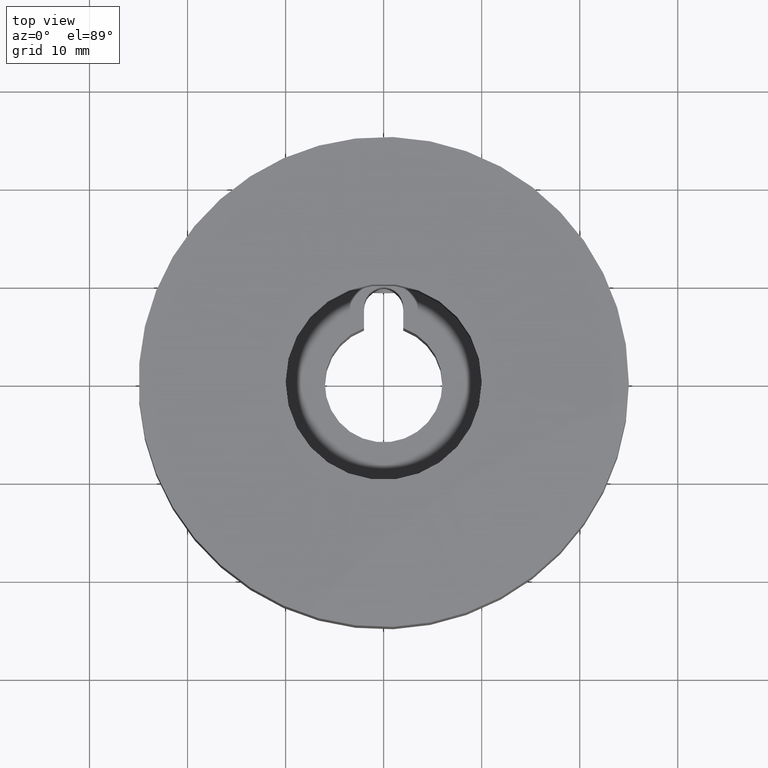
[diagram: clean part render]
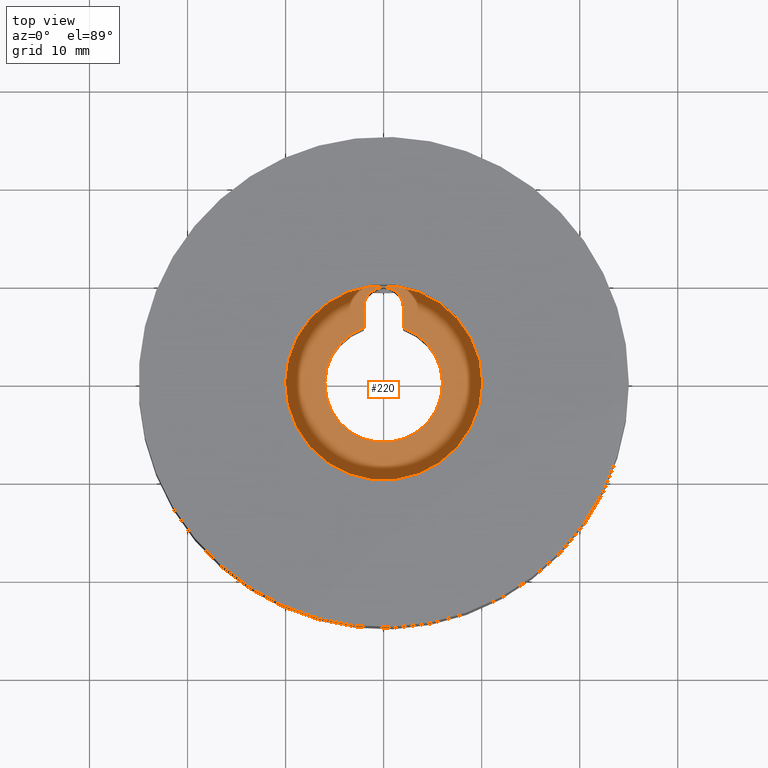
[diagram: same view with one face highlighted and labeled with its STEP entity id]
A machine part, top view. The second image highlights one B-rep face of the part: STEP entity #220.
In plain terms, the highlighted planar face has unit normal (0, 0, -1).
Its self-contained STEP definition (entity closure, byte-faithful):
#220 = ADVANCED_FACE( '', ( #257, #258 ), #259, .F. );
#257 = FACE_OUTER_BOUND( '', #329, .T. );
#258 = FACE_BOUND( '', #330, .T. );
#259 = PLANE( '', #331 );
#329 = EDGE_LOOP( '', ( #418 ) );
#330 = EDGE_LOOP( '', ( #419, #420, #421, #422 ) );
#331 = AXIS2_PLACEMENT_3D( '', #423, #424, #425 );
#418 = ORIENTED_EDGE( '', *, *, #575, .T. );
#419 = ORIENTED_EDGE( '', *, *, #576, .T. );
#420 = ORIENTED_EDGE( '', *, *, #577, .T. );
#421 = ORIENTED_EDGE( '', *, *, #573, .T. );
#422 = ORIENTED_EDGE( '', *, *, #571, .T. );
#423 = CARTESIAN_POINT( '', ( 0.000000000000000, 0.000000000000000, -19.0000000000000 ) );
#424 = DIRECTION( '', ( 0.000000000000000, 0.000000000000000, -1.00000000000000 ) );
#425 = DIRECTION( '', ( 1.00000000000000, 0.000000000000000, 0.000000000000000 ) );
#571 = EDGE_CURVE( '', #625, #623, #626, .T. );
#573 = EDGE_CURVE( '', #628, #625, #629, .F. );
#575 = EDGE_CURVE( '', #631, #631, #632, .T. );
#576 = EDGE_CURVE( '', #623, #633, #634, .F. );
#577 = EDGE_CURVE( '', #633, #628, #635, .T. );
#623 = VERTEX_POINT( '', #705 );
#625 = VERTEX_POINT( '', #708 );
#626 = LINE( '', #709, #710 );
#628 = VERTEX_POINT( '', #713 );
#629 = CIRCLE( '', #714, 6.00000000000000 );
#631 = VERTEX_POINT( '', #717 );
#632 = CIRCLE( '', #718, 10.0000000000000 );
#633 = VERTEX_POINT( '', #719 );
#634 = CIRCLE( '', #720, 2.00000000000000 );
#635 = LINE( '', #721, #722 );
#705 = CARTESIAN_POINT( '', ( -2.00000000000000, 7.80000000000001, -19.0000000000000 ) );
#708 = CARTESIAN_POINT( '', ( -2.00000000000000, 5.65685424949238, -19.0000000000000 ) );
#709 = CARTESIAN_POINT( '', ( -2.00000000000000, 1.22460635382238E-016, -19.0000000000000 ) );
#710 = VECTOR( '', #943, 1000.00000000000 );
#713 = CARTESIAN_POINT( '', ( 2.00000000000000, 5.65685424949238, -19.0000000000000 ) );
#714 = AXIS2_PLACEMENT_3D( '', #945, #946, #947 );
#717 = CARTESIAN_POINT( '', ( 10.0000000000000, 0.000000000000000, -19.0000000000000 ) );
#718 = AXIS2_PLACEMENT_3D( '', #949, #950, #951 );
#719 = CARTESIAN_POINT( '', ( 2.00000000000000, 7.80000000000000, -19.0000000000000 ) );
#720 = AXIS2_PLACEMENT_3D( '', #952, #953, #954 );
#721 = CARTESIAN_POINT( '', ( 2.00000000000000, -1.22460635382238E-016, -19.0000000000000 ) );
#722 = VECTOR( '', #955, 1000.00000000000 );
#943 = DIRECTION( '', ( 6.12303176911189E-017, 1.00000000000000, 0.000000000000000 ) );
#945 = CARTESIAN_POINT( '', ( 0.000000000000000, 0.000000000000000, -19.0000000000000 ) );
#946 = DIRECTION( '', ( 0.000000000000000, -0.000000000000000, 1.00000000000000 ) );
#947 = DIRECTION( '', ( 1.00000000000000, 0.000000000000000, 0.000000000000000 ) );
#949 = CARTESIAN_POINT( '', ( 0.000000000000000, 0.000000000000000, -19.0000000000000 ) );
#950 = DIRECTION( '', ( 0.000000000000000, -0.000000000000000, 1.00000000000000 ) );
#951 = DIRECTION( '', ( 1.00000000000000, 0.000000000000000, 0.000000000000000 ) );
#952 = CARTESIAN_POINT( '', ( 0.000000000000000, 7.80000000000000, -19.0000000000000 ) );
#953 = DIRECTION( '', ( 0.000000000000000, -0.000000000000000, 1.00000000000000 ) );
#954 = DIRECTION( '', ( 1.00000000000000, 0.000000000000000, 0.000000000000000 ) );
#955 = DIRECTION( '', ( -6.12303176911189E-017, -1.00000000000000, -0.000000000000000 ) );